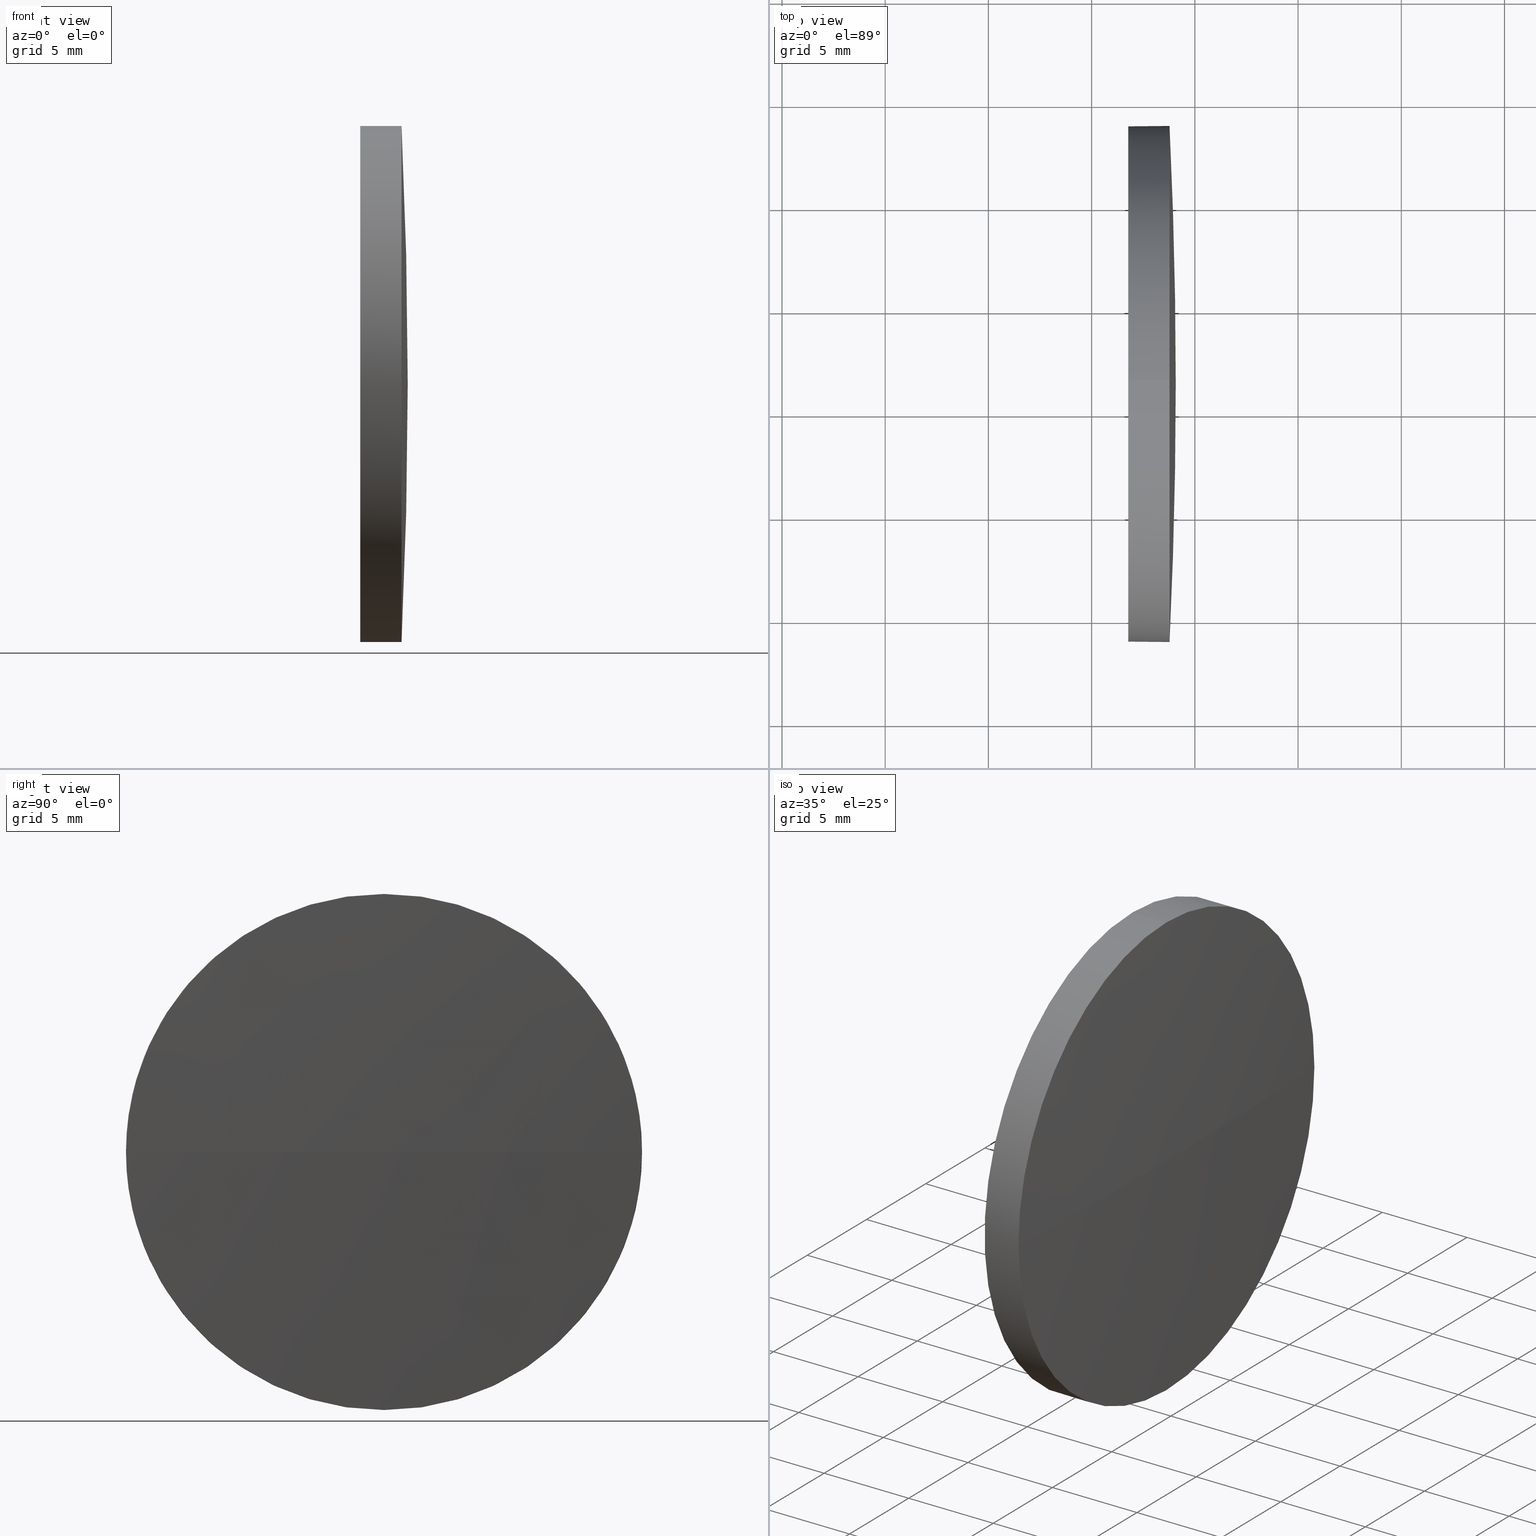
[diagram: canonical four-view strip — front | top / right | iso, engineering-drawing reading convention]
A machine part, canonical four-view strip (front | top / right | iso — engineering-drawing reading convention). The complete STEP part file that produces these views, byte-faithful:
ISO-10303-21;
HEADER;
FILE_DESCRIPTION (( 'STEP AP214' ),
    '1' );
FILE_NAME ('100137.STEP',
    '2019-05-15T03:20:18',
    ( '' ),
    ( '' ),
    'SwSTEP 2.0',
    'SolidWorks 2016',
    '' );
FILE_SCHEMA (( 'AUTOMOTIVE_DESIGN' ));
ENDSEC;

DATA;
#1 = CLOSED_SHELL ( 'NONE', ( #37, #41, #163, #177, #143 ) ) ;
#2 = ORIENTED_EDGE ( 'NONE', *, *, #107, .T. ) ;
#3 = AXIS2_PLACEMENT_3D ( 'NONE', #91, #53, #124 ) ;
#4 = EDGE_LOOP ( 'NONE', ( #121, #119, #2, #38, #161 ) ) ;
#5 = CARTESIAN_POINT ( 'NONE',  ( 593.7743167103306000, 81.37318732975506900, 0.0000000000000000000 ) ) ;
#6 = AXIS2_PLACEMENT_3D ( 'NONE', #5, #78, #93 ) ;
#7 = DIRECTION ( 'NONE',  ( -1.000000000000000000, -0.0000000000000000000, -0.0000000000000000000 ) ) ;
#8 = LINE ( 'NONE', #52, #160 ) ;
#9 = SURFACE_STYLE_USAGE ( .BOTH. , #20 ) ;
#10 = CARTESIAN_POINT ( 'NONE',  ( 594.0743167103306600, 81.37318732975566600, 0.0000000000000000000 ) ) ;
#11 = DIRECTION ( 'NONE',  ( 0.0000000000000000000, 0.0000000000000000000, -1.000000000000000000 ) ) ;
#12 = APPLICATION_CONTEXT ( 'automotive_design' ) ;
#13 = FACE_OUTER_BOUND ( 'NONE', #4, .T. ) ;
#14 = FILL_AREA_STYLE ('',( #147 ) ) ;
#15 =( NAMED_UNIT ( * ) SI_UNIT ( $, .STERADIAN. ) SOLID_ANGLE_UNIT ( ) );
#16 =( LENGTH_UNIT ( ) NAMED_UNIT ( * ) SI_UNIT ( .MILLI., .METRE. ) );
#17 = COLOUR_RGB ( '',1.000000000000000000, 1.000000000000000000, 1.000000000000000000 ) ;
#18 = SURFACE_STYLE_FILL_AREA ( #111 ) ;
#19 = CIRCLE ( 'NONE', #3, 12.49999999999999600 ) ;
#20 = SURFACE_SIDE_STYLE ('',( #18 ) ) ;
#21 = SURFACE_STYLE_FILL_AREA ( #14 ) ;
#22 =( GEOMETRIC_REPRESENTATION_CONTEXT ( 3 ) GLOBAL_UNCERTAINTY_ASSIGNED_CONTEXT ( ( #104 ) ) GLOBAL_UNIT_ASSIGNED_CONTEXT ( ( #97, #60, #46 ) ) REPRESENTATION_CONTEXT ( 'NONE', 'WORKASPACE' ) );
#23 = CARTESIAN_POINT ( 'NONE',  ( 593.7743167103306000, 93.87318732975502700, 1.530808498934111500E-015 ) ) ;
#24 = STYLED_ITEM ( 'NONE', ( #135 ), #127 ) ;
#25 = CIRCLE ( 'NONE', #6, 12.49999999999999600 ) ;
#26 =( LENGTH_UNIT ( ) NAMED_UNIT ( * ) SI_UNIT ( .MILLI., .METRE. ) );
#27 = PRODUCT ( '100137', '100137', '', ( #82 ) ) ;
#28 = EDGE_CURVE ( 'NONE', #150, #176, #95, .T. ) ;
#29 = APPLICATION_PROTOCOL_DEFINITION ( 'draft international standard', 'automotive_design', 1998, #12 ) ;
#30 = SURFACE_STYLE_USAGE ( .BOTH. , #116 ) ;
#31 =( NAMED_UNIT ( * ) PLANE_ANGLE_UNIT ( ) SI_UNIT ( $, .RADIAN. ) );
#32 = ORIENTED_EDGE ( 'NONE', *, *, #134, .T. ) ;
#33 = AXIS2_PLACEMENT_3D ( 'NONE', #165, #155, #77 ) ;
#34 = SPHERICAL_SURFACE ( 'NONE', #33, 260.5666666666641600 ) ;
#35 = ORIENTED_EDGE ( 'NONE', *, *, #180, .F. ) ;
#36 = CARTESIAN_POINT ( 'NONE',  ( 589.4087008075696300, 81.37318732975506900, 0.0000000000000000000 ) ) ;
#37 = ADVANCED_FACE ( 'NONE', ( #79 ), #173, .T. ) ;
#38 = ORIENTED_EDGE ( 'NONE', *, *, #146, .T. ) ;
#39 = DIRECTION ( 'NONE',  ( -1.000000000000000000, -0.0000000000000000000, -0.0000000000000000000 ) ) ;
#40 = DIRECTION ( 'NONE',  ( -1.000000000000000000, -0.0000000000000000000, -0.0000000000000000000 ) ) ;
#41 = ADVANCED_FACE ( 'NONE', ( #132 ), #63, .T. ) ;
#42 = CARTESIAN_POINT ( 'NONE',  ( 591.7743167103306000, 81.37318732975506900, -12.49999999999999600 ) ) ;
#43 =( NAMED_UNIT ( * ) SI_UNIT ( $, .STERADIAN. ) SOLID_ANGLE_UNIT ( ) );
#44 = DIRECTION ( 'NONE',  ( 1.000000000000000000, 0.0000000000000000000, 0.0000000000000000000 ) ) ;
#45 = PRODUCT_DEFINITION_FORMATION_WITH_SPECIFIED_SOURCE ( '�κ�', '', #27, .NOT_KNOWN. ) ;
#46 =( NAMED_UNIT ( * ) SI_UNIT ( $, .STERADIAN. ) SOLID_ANGLE_UNIT ( ) );
#47 = VERTEX_POINT ( 'NONE', #76 ) ;
#48 = CIRCLE ( 'NONE', #68, 12.49999999999999600 ) ;
#49 = PRESENTATION_LAYER_ASSIGNMENT (  '', '', ( #136 ) ) ;
#50 = CARTESIAN_POINT ( 'NONE',  ( 591.7743167103306000, 81.37318732975506900, 12.49999999999999600 ) ) ;
#51 = DIRECTION ( 'NONE',  ( -1.000000000000000000, 0.0000000000000000000, 0.0000000000000000000 ) ) ;
#52 = CARTESIAN_POINT ( 'NONE',  ( 589.4087008075696300, 81.37318732975506900, -12.49999999999999600 ) ) ;
#53 = DIRECTION ( 'NONE',  ( -1.000000000000000000, -0.0000000000000000000, -0.0000000000000000000 ) ) ;
#54 = AXIS2_PLACEMENT_3D ( 'NONE', #170, #131, #44 ) ;
#55 = DIRECTION ( 'NONE',  ( 0.0000000000000000000, -1.000000000000000000, -1.224646799147353500E-016 ) ) ;
#56 = CARTESIAN_POINT ( 'NONE',  ( 333.5076500436664400, 81.37318732975568000, 0.0000000000000000000 ) ) ;
#57 = ORIENTED_EDGE ( 'NONE', *, *, #180, .T. ) ;
#58 =( GEOMETRIC_REPRESENTATION_CONTEXT ( 3 ) GLOBAL_UNCERTAINTY_ASSIGNED_CONTEXT ( ( #120 ) ) GLOBAL_UNIT_ASSIGNED_CONTEXT ( ( #26, #142, #43 ) ) REPRESENTATION_CONTEXT ( 'NONE', 'WORKASPACE' ) );
#59 = EDGE_CURVE ( 'NONE', #75, #176, #61, .T. ) ;
#60 =( NAMED_UNIT ( * ) PLANE_ANGLE_UNIT ( ) SI_UNIT ( $, .RADIAN. ) );
#61 = CIRCLE ( 'NONE', #185, 12.49999999999999600 ) ;
#62 = AXIS2_PLACEMENT_3D ( 'NONE', #178, #106, #51 ) ;
#63 = SPHERICAL_SURFACE ( 'NONE', #94, 260.5666666666641600 ) ;
#64 = PRODUCT_DEFINITION ( 'δ֪', '', #45, #122 ) ;
#65 = ORIENTED_EDGE ( 'NONE', *, *, #90, .T. ) ;
#66 = ORIENTED_EDGE ( 'NONE', *, *, #123, .F. ) ;
#67 = DIRECTION ( 'NONE',  ( -1.000000000000000000, -0.0000000000000000000, -0.0000000000000000000 ) ) ;
#68 = AXIS2_PLACEMENT_3D ( 'NONE', #70, #7, #128 ) ;
#69 = DIRECTION ( 'NONE',  ( 0.0000000000000000000, 0.0000000000000000000, 1.000000000000000000 ) ) ;
#70 = CARTESIAN_POINT ( 'NONE',  ( 593.7743167103306000, 81.37318732975506900, 0.0000000000000000000 ) ) ;
#71 = ORIENTED_EDGE ( 'NONE', *, *, #174, .T. ) ;
#72 = VECTOR ( 'NONE', #67, 1000.000000000000000 ) ;
#73 = VERTEX_POINT ( 'NONE', #23 ) ;
#74 = AXIS2_PLACEMENT_3D ( 'NONE', #56, #145, #55 ) ;
#75 = VERTEX_POINT ( 'NONE', #153 ) ;
#76 = CARTESIAN_POINT ( 'NONE',  ( 593.7743167103306000, 81.37318732975506900, 12.49999999999999600 ) ) ;
#77 = DIRECTION ( 'NONE',  ( 0.0000000000000000000, -1.000000000000000000, 0.0000000000000000000 ) ) ;
#78 = DIRECTION ( 'NONE',  ( -1.000000000000000000, -0.0000000000000000000, -0.0000000000000000000 ) ) ;
#79 = FACE_OUTER_BOUND ( 'NONE', #158, .T. ) ;
#80 = ORIENTED_EDGE ( 'NONE', *, *, #123, .T. ) ;
#81 = DIRECTION ( 'NONE',  ( 1.000000000000000000, 0.0000000000000000000, 0.0000000000000000000 ) ) ;
#82 = PRODUCT_CONTEXT ( 'NONE', #113, 'mechanical' ) ;
#83 = CYLINDRICAL_SURFACE ( 'NONE', #112, 12.49999999999999600 ) ;
#84 = VERTEX_POINT ( 'NONE', #50 ) ;
#85 = PRESENTATION_LAYER_ASSIGNMENT (  '', '', ( #24 ) ) ;
#86 = LINE ( 'NONE', #125, #72 ) ;
#87 = PRODUCT_DEFINITION_SHAPE ( 'NONE', 'NONE',  #64 ) ;
#88 = FACE_OUTER_BOUND ( 'NONE', #96, .T. ) ;
#89 = DIRECTION ( 'NONE',  ( 0.0000000000000000000, 0.0000000000000000000, 1.000000000000000000 ) ) ;
#90 = EDGE_CURVE ( 'NONE', #73, #75, #19, .T. ) ;
#91 = CARTESIAN_POINT ( 'NONE',  ( 593.7743167103306000, 81.37318732975506900, 0.0000000000000000000 ) ) ;
#92 = CARTESIAN_POINT ( 'NONE',  ( 589.4087008075696300, 81.37318732975506900, 0.0000000000000000000 ) ) ;
#93 = DIRECTION ( 'NONE',  ( 0.0000000000000000000, 0.0000000000000000000, 1.000000000000000000 ) ) ;
#94 = AXIS2_PLACEMENT_3D ( 'NONE', #151, #89, #175 ) ;
#95 = CIRCLE ( 'NONE', #62, 260.5666666666641600 ) ;
#96 = EDGE_LOOP ( 'NONE', ( #114, #133, #184, #130 ) ) ;
#97 =( LENGTH_UNIT ( ) NAMED_UNIT ( * ) SI_UNIT ( .MILLI., .METRE. ) );
#98 = SHAPE_DEFINITION_REPRESENTATION ( #87, #127 ) ;
#99 = APPLICATION_PROTOCOL_DEFINITION ( 'draft international standard', 'automotive_design', 1998, #113 ) ;
#100 = COLOUR_RGB ( '',1.000000000000000000, 1.000000000000000000, 1.000000000000000000 ) ;
#101 = AXIS2_PLACEMENT_3D ( 'NONE', #186, #115, #183 ) ;
#102 = EDGE_CURVE ( 'NONE', #118, #84, #137, .T. ) ;
#103 = ORIENTED_EDGE ( 'NONE', *, *, #102, .T. ) ;
#104 = UNCERTAINTY_MEASURE_WITH_UNIT (LENGTH_MEASURE( 1.000000000000000100E-005 ), #97, 'distance_accuracy_value', 'NONE');
#105 = ORIENTED_EDGE ( 'NONE', *, *, #107, .F. ) ;
#106 = DIRECTION ( 'NONE',  ( 0.0000000000000000000, 0.0000000000000000000, -1.000000000000000000 ) ) ;
#107 = EDGE_CURVE ( 'NONE', #176, #47, #25, .T. ) ;
#108 = CARTESIAN_POINT ( 'NONE',  ( 593.7743167103306000, 68.87318732975572300, 0.0000000000000000000 ) ) ;
#109 = CIRCLE ( 'NONE', #101, 12.49999999999999600 ) ;
#110 = CARTESIAN_POINT ( 'NONE',  ( 591.7743167103306000, 81.37318732975506900, 0.0000000000000000000 ) ) ;
#111 = FILL_AREA_STYLE ('',( #181 ) ) ;
#112 = AXIS2_PLACEMENT_3D ( 'NONE', #92, #40, #69 ) ;
#113 = APPLICATION_CONTEXT ( 'automotive_design' ) ;
#114 = ORIENTED_EDGE ( 'NONE', *, *, #134, .F. ) ;
#115 = DIRECTION ( 'NONE',  ( -1.000000000000000000, -0.0000000000000000000, -0.0000000000000000000 ) ) ;
#116 = SURFACE_SIDE_STYLE ('',( #21 ) ) ;
#117 = MECHANICAL_DESIGN_GEOMETRIC_PRESENTATION_REPRESENTATION (  '', ( #24 ), #162 ) ;
#118 = VERTEX_POINT ( 'NONE', #42 ) ;
#119 = ORIENTED_EDGE ( 'NONE', *, *, #59, .T. ) ;
#120 = UNCERTAINTY_MEASURE_WITH_UNIT (LENGTH_MEASURE( 1.000000000000000100E-005 ), #26, 'distance_accuracy_value', 'NONE');
#121 = ORIENTED_EDGE ( 'NONE', *, *, #174, .F. ) ;
#122 = PRODUCT_DEFINITION_CONTEXT ( 'detailed design', #12, 'design' ) ;
#123 = EDGE_CURVE ( 'NONE', #47, #73, #48, .T. ) ;
#124 = DIRECTION ( 'NONE',  ( 0.0000000000000000000, 0.0000000000000000000, 1.000000000000000000 ) ) ;
#125 = CARTESIAN_POINT ( 'NONE',  ( 589.4087008075696300, 81.37318732975506900, 12.49999999999999600 ) ) ;
#126 = DIRECTION ( 'NONE',  ( -1.000000000000000000, -0.0000000000000000000, -0.0000000000000000000 ) ) ;
#127 = ADVANCED_BREP_SHAPE_REPRESENTATION ( '100137', ( #144, #54 ), #22 ) ;
#128 = DIRECTION ( 'NONE',  ( 0.0000000000000000000, 0.0000000000000000000, 1.000000000000000000 ) ) ;
#129 = AXIS2_PLACEMENT_3D ( 'NONE', #110, #39, #154 ) ;
#130 = ORIENTED_EDGE ( 'NONE', *, *, #90, .F. ) ;
#131 = DIRECTION ( 'NONE',  ( 0.0000000000000000000, 0.0000000000000000000, 1.000000000000000000 ) ) ;
#132 = FACE_OUTER_BOUND ( 'NONE', #156, .T. ) ;
#133 = ORIENTED_EDGE ( 'NONE', *, *, #28, .T. ) ;
#134 = EDGE_CURVE ( 'NONE', #150, #73, #172, .T. ) ;
#135 = PRESENTATION_STYLE_ASSIGNMENT (( #30 ) ) ;
#136 = STYLED_ITEM ( 'NONE', ( #166 ), #144 ) ;
#137 = CIRCLE ( 'NONE', #129, 12.49999999999999600 ) ;
#138 = DIRECTION ( 'NONE',  ( -1.000000000000000000, -0.0000000000000000000, -0.0000000000000000000 ) ) ;
#139 = UNCERTAINTY_MEASURE_WITH_UNIT (LENGTH_MEASURE( 1.000000000000000100E-005 ), #16, 'distance_accuracy_value', 'NONE');
#140 = DIRECTION ( 'NONE',  ( 0.0000000000000000000, 0.0000000000000000000, 1.000000000000000000 ) ) ;
#141 = ORIENTED_EDGE ( 'NONE', *, *, #146, .F. ) ;
#142 =( NAMED_UNIT ( * ) PLANE_ANGLE_UNIT ( ) SI_UNIT ( $, .RADIAN. ) );
#143 = ADVANCED_FACE ( 'NONE', ( #169 ), #182, .F. ) ;
#144 = MANIFOLD_SOLID_BREP ( '��ת1', #1 ) ;
#145 = DIRECTION ( 'NONE',  ( 0.0000000000000000000, -1.224646799147353200E-016, 1.000000000000000000 ) ) ;
#146 = EDGE_CURVE ( 'NONE', #47, #84, #86, .T. ) ;
#147 = FILL_AREA_STYLE_COLOUR ( '', #100 ) ;
#148 = AXIS2_PLACEMENT_3D ( 'NONE', #168, #81, #11 ) ;
#149 = MECHANICAL_DESIGN_GEOMETRIC_PRESENTATION_REPRESENTATION (  '', ( #136 ), #58 ) ;
#150 = VERTEX_POINT ( 'NONE', #10 ) ;
#151 = CARTESIAN_POINT ( 'NONE',  ( 333.5076500436664400, 81.37318732975568000, 0.0000000000000000000 ) ) ;
#152 = ORIENTED_EDGE ( 'NONE', *, *, #28, .F. ) ;
#153 = CARTESIAN_POINT ( 'NONE',  ( 593.7743167103306000, 81.37318732975506900, -12.49999999999999600 ) ) ;
#154 = DIRECTION ( 'NONE',  ( 0.0000000000000000000, 0.0000000000000000000, 1.000000000000000000 ) ) ;
#155 = DIRECTION ( 'NONE',  ( 0.0000000000000000000, 0.0000000000000000000, 1.000000000000000000 ) ) ;
#156 = EDGE_LOOP ( 'NONE', ( #152, #32, #66, #105 ) ) ;
#157 = CARTESIAN_POINT ( 'NONE',  ( 593.7743167103306000, 81.37318732975506900, 0.0000000000000000000 ) ) ;
#158 = EDGE_LOOP ( 'NONE', ( #65, #71, #35, #141, #80 ) ) ;
#159 = PRODUCT_RELATED_PRODUCT_CATEGORY ( 'part', '', ( #27 ) ) ;
#160 = VECTOR ( 'NONE', #167, 1000.000000000000000 ) ;
#161 = ORIENTED_EDGE ( 'NONE', *, *, #102, .F. ) ;
#162 =( GEOMETRIC_REPRESENTATION_CONTEXT ( 3 ) GLOBAL_UNCERTAINTY_ASSIGNED_CONTEXT ( ( #139 ) ) GLOBAL_UNIT_ASSIGNED_CONTEXT ( ( #16, #31, #15 ) ) REPRESENTATION_CONTEXT ( 'NONE', 'WORKASPACE' ) );
#163 = ADVANCED_FACE ( 'NONE', ( #88 ), #34, .T. ) ;
#164 = AXIS2_PLACEMENT_3D ( 'NONE', #36, #138, #140 ) ;
#165 = CARTESIAN_POINT ( 'NONE',  ( 333.5076500436664400, 81.37318732975568000, 0.0000000000000000000 ) ) ;
#166 = PRESENTATION_STYLE_ASSIGNMENT (( #9 ) ) ;
#167 = DIRECTION ( 'NONE',  ( -1.000000000000000000, -0.0000000000000000000, -0.0000000000000000000 ) ) ;
#168 = CARTESIAN_POINT ( 'NONE',  ( 591.7743167103306000, 81.37318732975506900, 0.0000000000000000000 ) ) ;
#169 = FACE_OUTER_BOUND ( 'NONE', #171, .T. ) ;
#170 = CARTESIAN_POINT ( 'NONE',  ( 0.0000000000000000000, 0.0000000000000000000, 0.0000000000000000000 ) ) ;
#171 = EDGE_LOOP ( 'NONE', ( #57, #103 ) ) ;
#172 = CIRCLE ( 'NONE', #74, 260.5666666666641600 ) ;
#173 = CYLINDRICAL_SURFACE ( 'NONE', #164, 12.49999999999999600 ) ;
#174 = EDGE_CURVE ( 'NONE', #75, #118, #8, .T. ) ;
#175 = DIRECTION ( 'NONE',  ( 0.0000000000000000000, -1.000000000000000000, 0.0000000000000000000 ) ) ;
#176 = VERTEX_POINT ( 'NONE', #108 ) ;
#177 = ADVANCED_FACE ( 'NONE', ( #13 ), #83, .T. ) ;
#178 = CARTESIAN_POINT ( 'NONE',  ( 333.5076500436664400, 81.37318732975568000, 0.0000000000000000000 ) ) ;
#179 = DIRECTION ( 'NONE',  ( 0.0000000000000000000, 0.0000000000000000000, 1.000000000000000000 ) ) ;
#180 = EDGE_CURVE ( 'NONE', #84, #118, #109, .T. ) ;
#181 = FILL_AREA_STYLE_COLOUR ( '', #17 ) ;
#182 = PLANE ( 'NONE',  #148 ) ;
#183 = DIRECTION ( 'NONE',  ( 0.0000000000000000000, 0.0000000000000000000, 1.000000000000000000 ) ) ;
#184 = ORIENTED_EDGE ( 'NONE', *, *, #59, .F. ) ;
#185 = AXIS2_PLACEMENT_3D ( 'NONE', #157, #126, #179 ) ;
#186 = CARTESIAN_POINT ( 'NONE',  ( 591.7743167103306000, 81.37318732975506900, 0.0000000000000000000 ) ) ;
ENDSEC;
END-ISO-10303-21;
